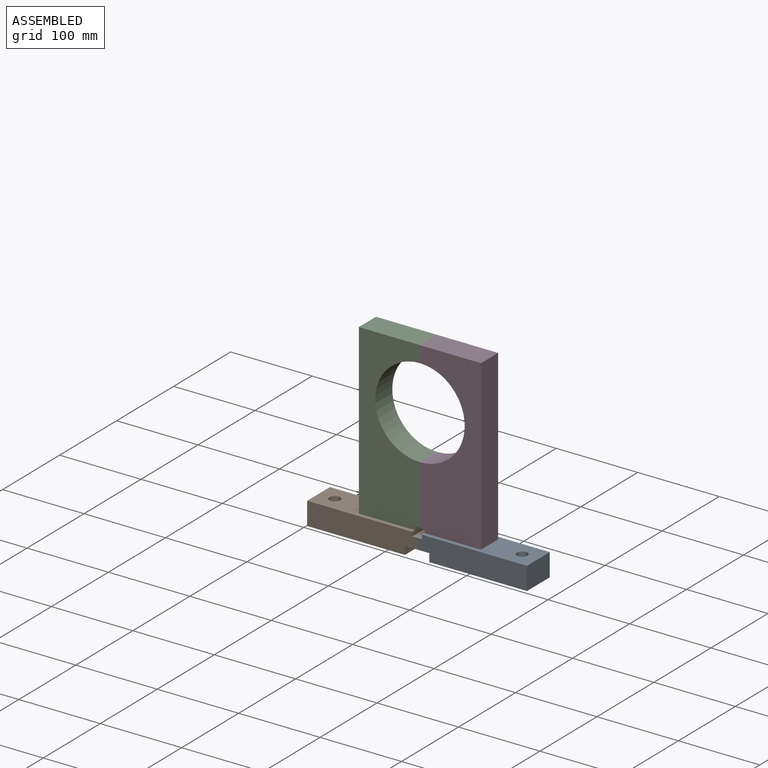
[diagram: assembled view]
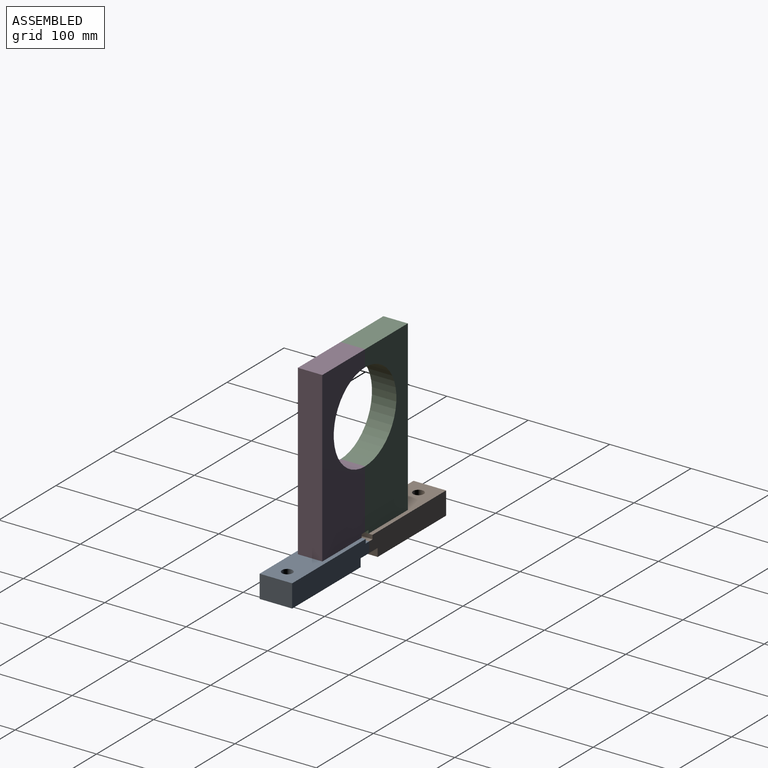
[diagram: assembled view, second angle]
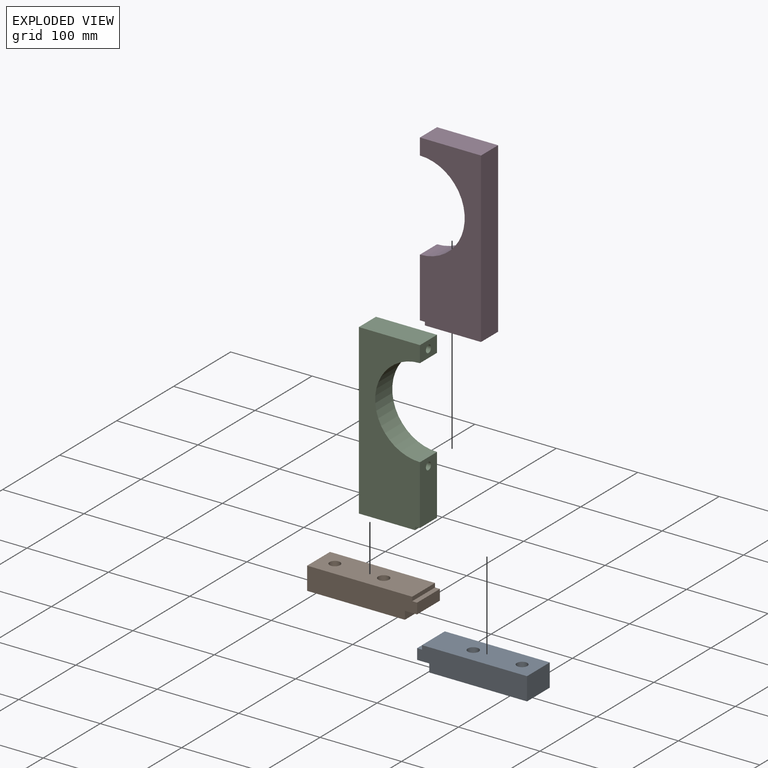
[diagram: exploded view]
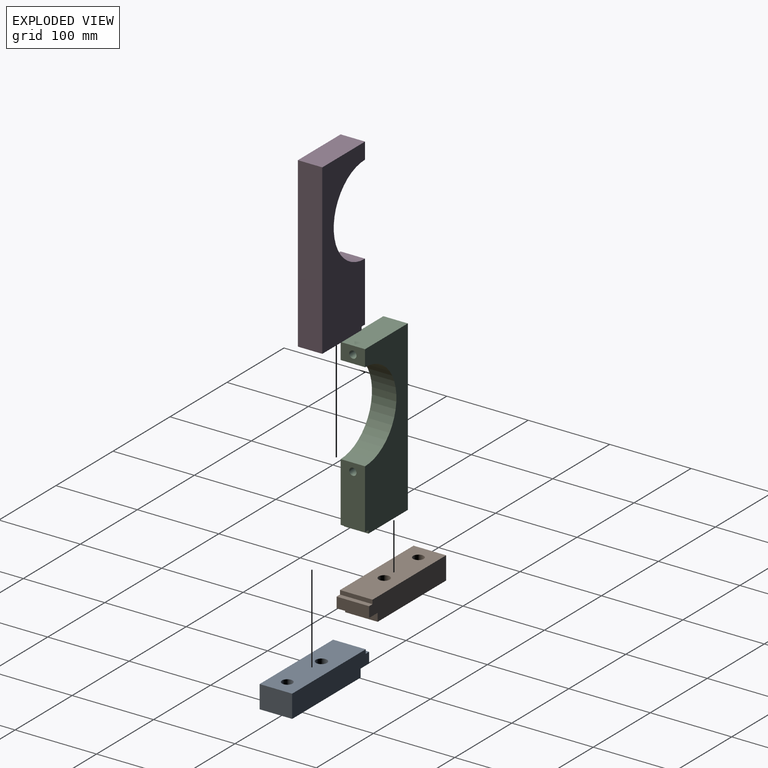
[diagram: exploded view, second angle]
ASSEMBLY  parts=4 mates=2
PART A: 14 faces, bbox 135x40x28 mm
  f0: plane 40x13mm, normal (-1,0,0), area 520mm2, adj f1,f7,f8,f9
  f1: plane 40x15mm, normal (0,0,-1), area 600mm2, adj f0,f2,f8,f9
  f2: plane 40x10mm, normal (-1,0,0), area 400mm2, adj f1,f3,f8,f9
  f3: plane 120x40mm, normal (0,0,-1), area 4376.2mm2, adj f2,f4,f8,f9,f10,f13
  f4: plane 40x28mm, normal (1,0,0), area 1120mm2, adj f3,f5,f8,f9
  f5: plane 129x40mm, normal (0,0,1), area 4884.1mm2, adj f4,f6,f8,f9,f10,f11
  f6: plane 40x5mm, normal (-1,0,0), area 200mm2, adj f5,f7,f8,f9
  f7: plane 40x6mm, normal (0,0,1), area 240mm2, adj f0,f6,f8,f9
  f8: plane 135x28mm, normal (0,-1,0), area 3600mm2, adj f0,f1,f2,f3,f4,f5,f6,f7
  f9: plane 135x28mm, normal (0,1,0), area 3600mm2, adj f0,f1,f2,f3,f4,f5,f6,f7
  f10: cylinder r=6.5mm len=28mm, axis (0,0,-1), area 1143.5mm2, adj f3,f5
  f11: cylinder r=6.75mm len=16mm, axis (0,0,-1), area 678.6mm2, adj f5,f12
  f12: plane 19.25x19.25mm, normal (0,0,-1), area 147.9mm2, adj f11,f13
  f13: cylinder r=9.62mm len=19.25mm, axis (0,0,-1), area 725.7mm2, adj f3,f12
PART B: 14 faces, bbox 135x40x28 mm
  f0: plane 40x13mm, normal (1,0,0), area 520mm2, adj f1,f7,f8,f9
  f1: plane 40x6mm, normal (0,0,1), area 240mm2, adj f0,f2,f8,f9
  f2: plane 40x5mm, normal (1,0,0), area 200mm2, adj f1,f3,f8,f9
  f3: plane 129x40mm, normal (0,0,1), area 4884.1mm2, adj f2,f4,f8,f9,f10,f11
  f4: plane 40x28mm, normal (-1,0,0), area 1120mm2, adj f3,f5,f8,f9
  f5: plane 120x40mm, normal (0,0,-1), area 4376.2mm2, adj f4,f6,f8,f9,f10,f13
  f6: plane 40x10mm, normal (1,0,0), area 400mm2, adj f5,f7,f8,f9
  f7: plane 40x15mm, normal (0,0,-1), area 600mm2, adj f0,f6,f8,f9
  f8: plane 135x28mm, normal (0,-1,0), area 3600mm2, adj f0,f1,f2,f3,f4,f5,f6,f7
  f9: plane 135x28mm, normal (0,1,0), area 3600mm2, adj f0,f1,f2,f3,f4,f5,f6,f7
  f10: cylinder r=6.5mm len=28mm, axis (0,0,-1), area 1143.5mm2, adj f3,f5
  f11: cylinder r=6.75mm len=16mm, axis (0,0,-1), area 678.6mm2, adj f3,f12
  f12: plane 19.25x19.25mm, normal (0,0,-1), area 147.9mm2, adj f11,f13
  f13: cylinder r=9.62mm len=19.25mm, axis (0,0,-1), area 725.7mm2, adj f5,f12
PART C: 18 faces, bbox 75x30x207 mm
  f0: cylinder r=55mm len=110mm, axis (0,1,0), area 5183.6mm2, adj f1,f7,f8,f9
  f1: plane 30x20mm, normal (1,0,0), area 536.4mm2, adj f0,f2,f8,f9,f13
  f2: plane 75x30mm, normal (0,0,1), area 2250mm2, adj f1,f3,f8,f9
  f3: plane 207x30mm, normal (-1,0,0), area 5891mm2, adj f2,f4,f8,f9,f12,f15
  f4: plane 69x30mm, normal (0,0,-1), area 1978.4mm2, adj f3,f5,f8,f9,f17
  f5: plane 30x4mm, normal (1,0,0), area 120mm2, adj f4,f6,f8,f9
  f6: plane 30x6mm, normal (0,0,-1), area 180mm2, adj f5,f7,f8,f9
  f7: plane 73x30mm, normal (1,0,0), area 2126.4mm2, adj f0,f6,f8,f9,f10
  f8: plane 207x75mm, normal (0,-1,0), area 10749.3mm2, adj f0,f1,f2,f3,f4,f5,f6,f7
  f9: plane 207x75mm, normal (0,1,0), area 10749.3mm2, adj f0,f1,f2,f3,f4,f5,f6,f7
  f10: cylinder r=4.5mm len=67mm, axis (-1,0,0), area 1894.4mm2, adj f7,f11
  f11: plane 14.25x14.25mm, normal (-1,0,0), area 95.9mm2, adj f10,f12
  f12: cylinder r=7.12mm len=14.25mm, axis (-1,0,0), area 358.1mm2, adj f3,f11
  f13: cylinder r=4.5mm len=67mm, axis (-1,0,0), area 1894.4mm2, adj f1,f14
  f14: plane 14.25x14.25mm, normal (-1,0,0), area 95.9mm2, adj f13,f15
  f15: cylinder r=7.12mm len=14.25mm, axis (-1,0,0), area 358.1mm2, adj f3,f14
  f16: cone r=0mm half-angle=59deg, axis (0,0,-1), area 106.9mm2, adj f17
  f17: cylinder r=5.4mm len=10.8mm, axis (0,0,-1), area 347.8mm2, adj f4,f16
PART D: 16 faces, bbox 75x30x207 mm
  f0: cylinder r=55mm len=110mm, axis (0,1,0), area 5183.6mm2, adj f1,f7,f8,f9
  f1: plane 30x20mm, normal (1,0,0), area 563.7mm2, adj f0,f2,f8,f9,f15
  f2: plane 75x30mm, normal (0,0,1), area 2250mm2, adj f1,f3,f8,f9
  f3: plane 207x30mm, normal (-1,0,0), area 6210mm2, adj f2,f4,f8,f9
  f4: plane 69x30mm, normal (0,0,-1), area 1978.4mm2, adj f3,f5,f8,f9,f11
  f5: plane 30x4mm, normal (1,0,0), area 120mm2, adj f4,f6,f8,f9
  f6: plane 30x6mm, normal (0,0,-1), area 180mm2, adj f5,f7,f8,f9
  f7: plane 73x30mm, normal (1,0,0), area 2153.7mm2, adj f0,f6,f8,f9,f13
  f8: plane 207x75mm, normal (0,-1,0), area 10749.3mm2, adj f0,f1,f2,f3,f4,f5,f6,f7
  f9: plane 207x75mm, normal (0,1,0), area 10749.3mm2, adj f0,f1,f2,f3,f4,f5,f6,f7
  f10: cone r=0mm half-angle=59deg, axis (0,0,-1), area 106.9mm2, adj f11
  f11: cylinder r=5.4mm len=10.8mm, axis (0,0,-1), area 347.8mm2, adj f4,f10
  f12: cone r=0mm half-angle=59deg, axis (1,0,0), area 42.4mm2, adj f13
  f13: cylinder r=3.4mm len=25mm, axis (1,0,0), area 534.1mm2, adj f7,f12
  f14: cone r=0mm half-angle=59deg, axis (1,0,0), area 42.4mm2, adj f15
  f15: cylinder r=3.4mm len=25mm, axis (1,0,0), area 534.1mm2, adj f1,f14
PLACE A t=(93.16,20,-261.19)mm
PLACE B t=(93.16,20,-261.19)mm
PLACE C t=(55.66,15,-142.02)mm
PLACE D rot(axis=(0,0,1),180deg) t=(130.66,-15,-142.02)mm
MATE cylindrical D.f10 <-> A.f11  axis (0,0,-1) through (148.16,0,-245.52)mm
MATE cylindrical C.f16 <-> B.f11  axis (0,0,-1) through (38.16,0,-245.52)mm
